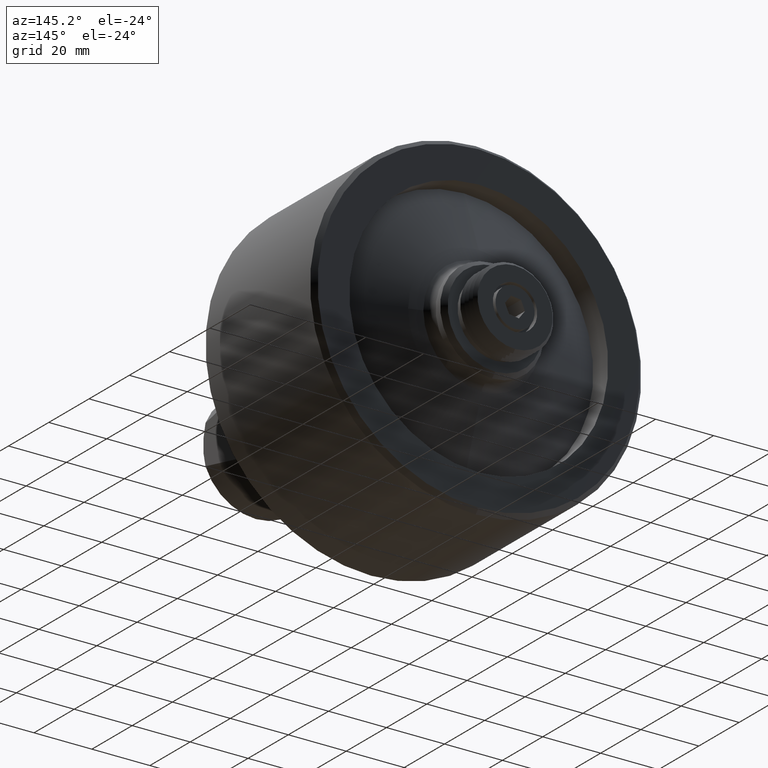
[diagram: clean part render]
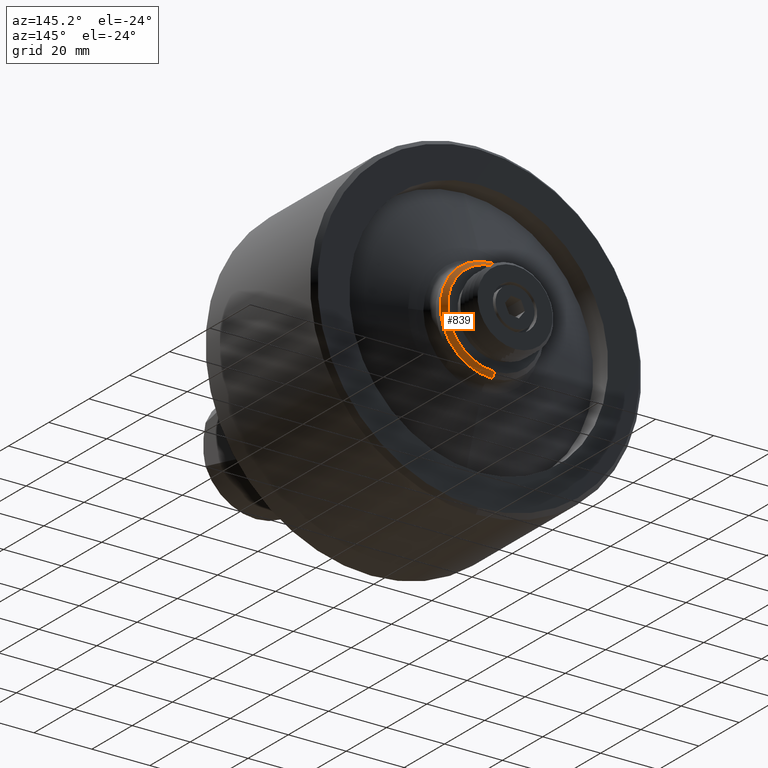
[diagram: same view with one face highlighted and labeled with its STEP entity id]
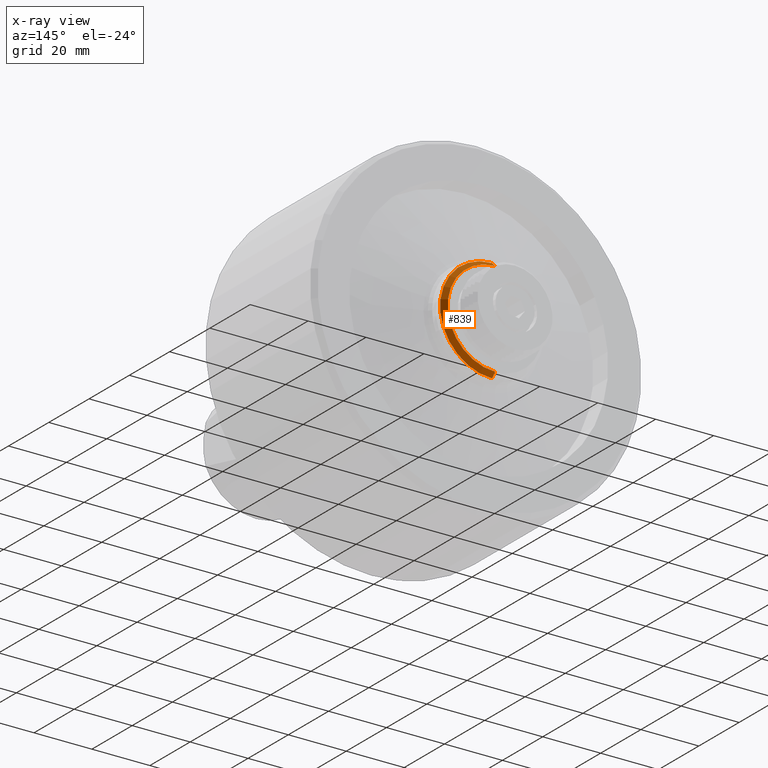
[diagram: x-ray of the same camera — body ghosted, the highlighted face saturated]
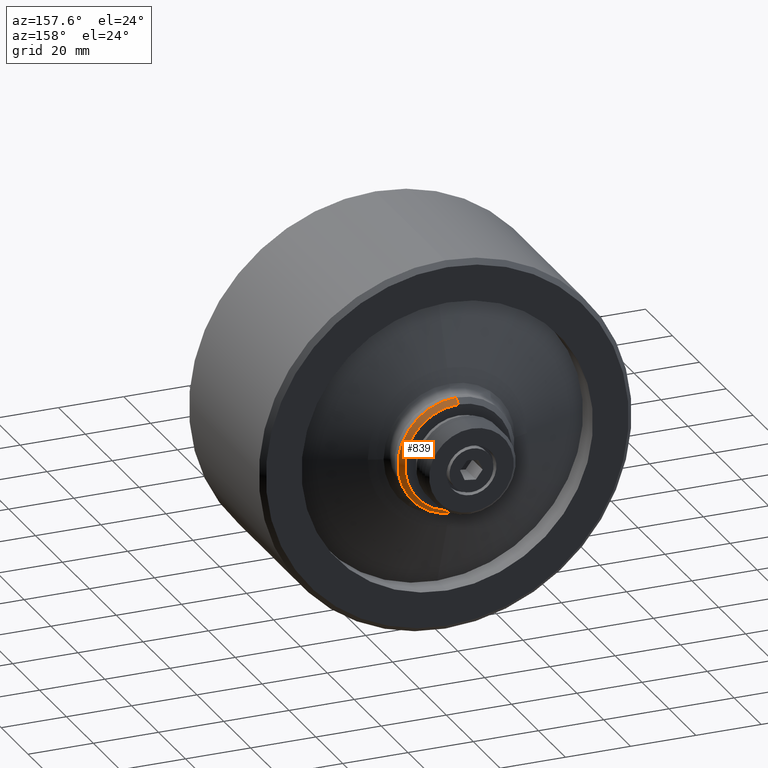
[diagram: same view with one face highlighted and labeled with its STEP entity id]
A machine part, auxiliary view. The second image highlights one B-rep face of the part: STEP entity #839.
The next image is the same camera in x-ray: the body ghosted, the highlighted face saturated — about 0% of this face is hidden behind the body in this view.
A second angle (auxiliary view) of the same face is appended — the face is thin or edge-on in the first view.
In plain terms, the highlighted conical surface has half-angle 45 deg.
Its self-contained STEP definition (entity closure, byte-faithful):
#17 = AXIS2_PLACEMENT_3D ( 'NONE', #1532, #1533, #1534 ) ;
#21 = CONICAL_SURFACE ( 'NONE', #17, 0.7049999999999984100, 0.7853981633974482800 ) ;
#51 = CIRCLE ( 'NONE', #56, 0.7049999999999984100 ) ;
#56 = AXIS2_PLACEMENT_3D ( 'NONE', #1293, #1294, #1295 ) ;
#68 = VECTOR ( 'NONE', #1358, 39.37007874015748100 ) ;
#485 = EDGE_CURVE ( 'NONE', #2553, #2555, #2774, .T. ) ;
#488 = EDGE_CURVE ( 'NONE', #2553, #2554, #662, .T. ) ;
#545 = EDGE_CURVE ( 'NONE', #2555, #2556, #51, .T. ) ;
#576 = EDGE_CURVE ( 'NONE', #2554, #2556, #2823, .T. ) ;
#662 = CIRCLE ( 'NONE', #664, 0.6449999999999995700 ) ;
#663 = VECTOR ( 'NONE', #1095, 39.37007874015748100 ) ;
#664 = AXIS2_PLACEMENT_3D ( 'NONE', #1096, #1097, #1098 ) ;
#839 = ADVANCED_FACE ( 'NONE', ( #2847 ), #21, .T. ) ;
#1094 = CARTESIAN_POINT ( 'NONE',  ( 3.639051278140389400E-015, 4.675000000000000700, 0.7049999999999984100 ) ) ;
#1095 = DIRECTION ( 'NONE',  ( 8.659560562354931600E-017, -0.7071067811865475700, 0.7071067811865474600 ) ) ;
#1096 = CARTESIAN_POINT ( 'NONE',  ( 3.552713678800500900E-015, 4.734999999999999400, 0.0000000000000000000 ) ) ;
#1097 = DIRECTION ( 'NONE',  ( 0.0000000000000000000, 1.000000000000000000, 0.0000000000000000000 ) ) ;
#1098 = DIRECTION ( 'NONE',  ( 0.0000000000000000000, 0.0000000000000000000, 1.000000000000000000 ) ) ;
#1293 = CARTESIAN_POINT ( 'NONE',  ( 3.552713678800500900E-015, 4.675000000000000700, 0.0000000000000000000 ) ) ;
#1294 = DIRECTION ( 'NONE',  ( 0.0000000000000000000, 1.000000000000000000, 0.0000000000000000000 ) ) ;
#1295 = DIRECTION ( 'NONE',  ( 0.0000000000000000000, 0.0000000000000000000, 1.000000000000000000 ) ) ;
#1357 = CARTESIAN_POINT ( 'NONE',  ( 3.552713678800500900E-015, 4.675000000000000700, -0.7049999999999984100 ) ) ;
#1358 = DIRECTION ( 'NONE',  ( 0.0000000000000000000, -0.7071067811865475700, -0.7071067811865474600 ) ) ;
#1532 = CARTESIAN_POINT ( 'NONE',  ( 3.552713678800500900E-015, 4.675000000000000700, 0.0000000000000000000 ) ) ;
#1533 = DIRECTION ( 'NONE',  ( -0.0000000000000000000, -1.000000000000000000, -0.0000000000000000000 ) ) ;
#1534 = DIRECTION ( 'NONE',  ( 0.0000000000000000000, 0.0000000000000000000, -1.000000000000000000 ) ) ;
#2149 = CARTESIAN_POINT ( 'NONE',  ( 3.635377337742947500E-015, 4.734999999999999400, 0.6449999999999995700 ) ) ;
#2150 = CARTESIAN_POINT ( 'NONE',  ( 3.552713678800500900E-015, 4.734999999999999400, -0.6449999999999995700 ) ) ;
#2151 = CARTESIAN_POINT ( 'NONE',  ( 3.552713678800500900E-015, 4.675000000000000700, 0.7049999999999984100 ) ) ;
#2152 = CARTESIAN_POINT ( 'NONE',  ( 3.639051278140389400E-015, 4.675000000000000700, -0.7049999999999984100 ) ) ;
#2220 = EDGE_LOOP ( 'NONE', ( #2634, #2636, #2635, #2637 ) ) ;
#2553 = VERTEX_POINT ( 'NONE', #2149 ) ;
#2554 = VERTEX_POINT ( 'NONE', #2150 ) ;
#2555 = VERTEX_POINT ( 'NONE', #2151 ) ;
#2556 = VERTEX_POINT ( 'NONE', #2152 ) ;
#2634 = ORIENTED_EDGE ( 'NONE', *, *, #488, .F. ) ;
#2635 = ORIENTED_EDGE ( 'NONE', *, *, #545, .T. ) ;
#2636 = ORIENTED_EDGE ( 'NONE', *, *, #485, .T. ) ;
#2637 = ORIENTED_EDGE ( 'NONE', *, *, #576, .F. ) ;
#2774 = LINE ( 'NONE', #1094, #663 ) ;
#2823 = LINE ( 'NONE', #1357, #68 ) ;
#2847 = FACE_OUTER_BOUND ( 'NONE', #2220, .T. ) ;